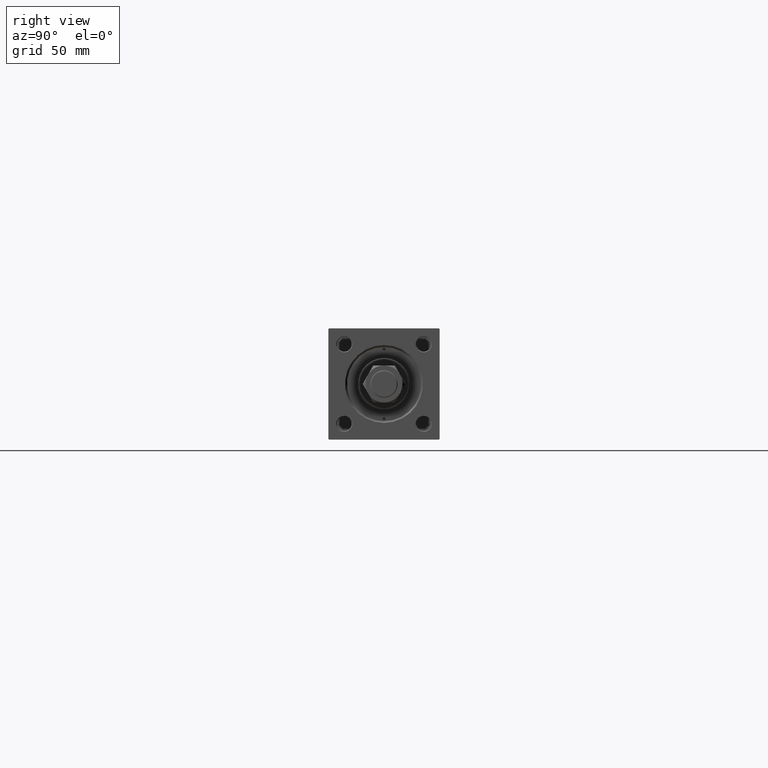
[diagram: clean part render]
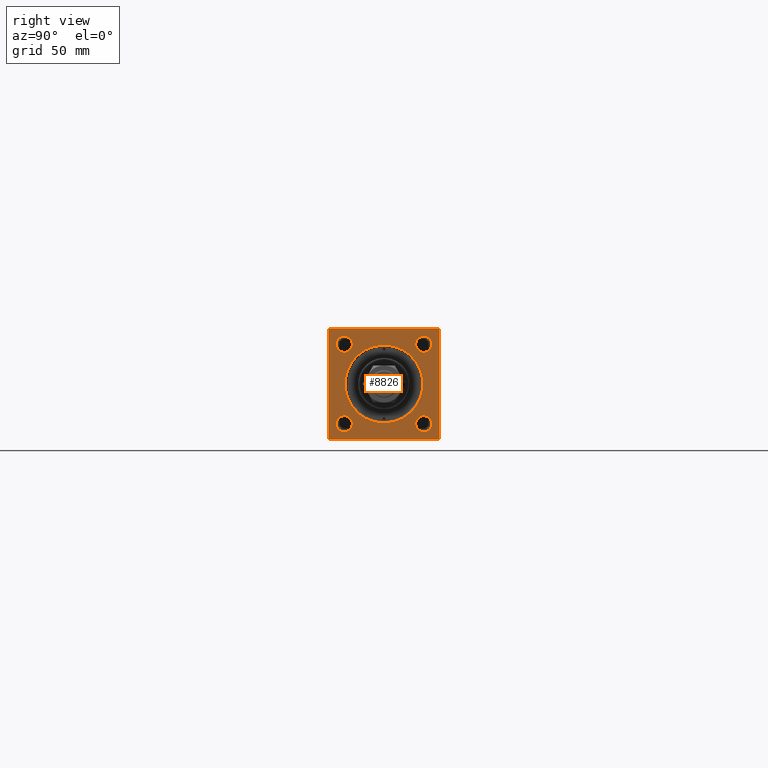
[diagram: same view with one face highlighted and labeled with its STEP entity id]
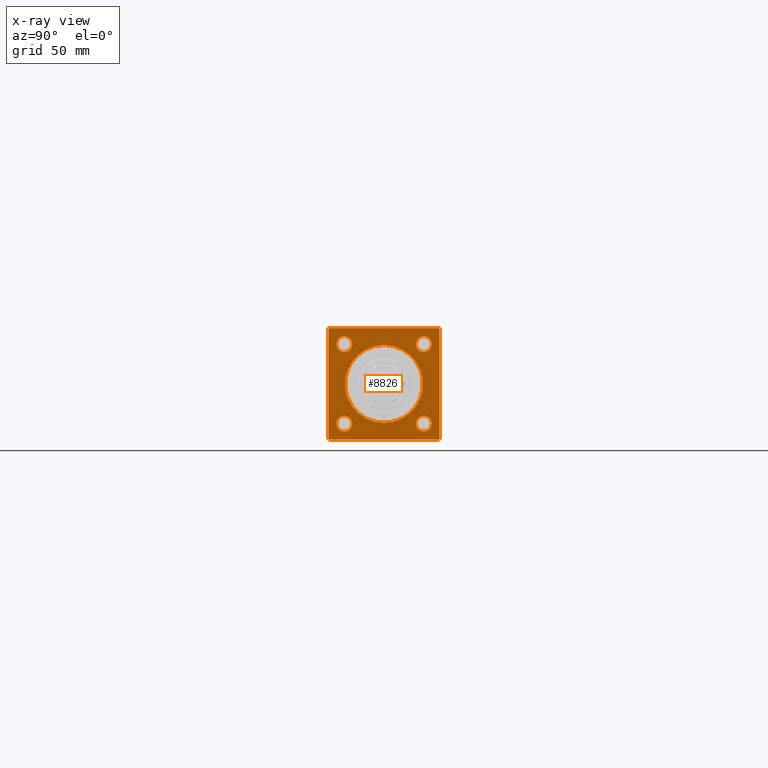
[diagram: x-ray of the same camera — body ghosted, the highlighted face saturated]
A machine part, right view. The second image highlights one B-rep face of the part: STEP entity #8826.
The next image is the same camera in x-ray: the body ghosted, the highlighted face saturated — about 0% of this face is hidden behind the body in this view.
In plain terms, the highlighted planar face has unit normal (-1, 0, 0).
Its self-contained STEP definition (entity closure, byte-faithful):
#196 = CARTESIAN_POINT ( 'NONE',  ( 485.0000000000000000, 32.14999999999999147, -32.15000000000000568 ) ) ;
#518 = EDGE_LOOP ( 'NONE', ( #8253, #6104 ) ) ;
#940 = ORIENTED_EDGE ( 'NONE', *, *, #2223, .T. ) ;
#1063 = VECTOR ( 'NONE', #6976, 1000.000000000000000 ) ;
#1171 = VERTEX_POINT ( 'NONE', #2897 ) ;
#1298 = VECTOR ( 'NONE', #34038, 1000.000000000000000 ) ;
#1666 = CIRCLE ( 'NONE', #3349, 6.500000000000117240 ) ;
#1839 = AXIS2_PLACEMENT_3D ( 'NONE', #37084, #29444, #29696 ) ;
#2223 = EDGE_CURVE ( 'NONE', #42530, #47388, #24286, .T. ) ;
#2332 = CARTESIAN_POINT ( 'NONE',  ( 485.0000000000000000, -32.15000000000001279, -32.15000000000000568 ) ) ;
#2397 = LINE ( 'NONE', #26338, #44651 ) ;
#2772 = CARTESIAN_POINT ( 'NONE',  ( 485.0000000000000000, 32.14999999999999147, 25.64999999999989555 ) ) ;
#2820 = DIRECTION ( 'NONE',  ( -1.000000000000000000, -0.000000000000000000, -0.000000000000000000 ) ) ;
#2897 = CARTESIAN_POINT ( 'NONE',  ( 485.0000000000000000, 45.00000000000001421, -44.49999999999991473 ) ) ;
#3349 = AXIS2_PLACEMENT_3D ( 'NONE', #31777, #2820, #3354 ) ;
#3354 = DIRECTION ( 'NONE',  ( 0.000000000000000000, 0.000000000000000000, 1.000000000000000000 ) ) ;
#3587 = FACE_OUTER_BOUND ( 'NONE', #6552, .T. ) ;
#3851 = DIRECTION ( 'NONE',  ( -0.000000000000000000, 0.000000000000000000, 1.000000000000000000 ) ) ;
#4114 = CARTESIAN_POINT ( 'NONE',  ( 485.0000000000000000, 44.49999999999990052, 45.00000000000000000 ) ) ;
#4147 = LINE ( 'NONE', #5180, #22558 ) ;
#4494 = ORIENTED_EDGE ( 'NONE', *, *, #11416, .F. ) ;
#4656 = AXIS2_PLACEMENT_3D ( 'NONE', #2332, #21100, #18871 ) ;
#4769 = EDGE_CURVE ( 'NONE', #27151, #29577, #45240, .T. ) ;
#5180 = CARTESIAN_POINT ( 'NONE',  ( 485.0000000000000000, 45.00000000000001421, 45.00000000000000000 ) ) ;
#5250 = EDGE_LOOP ( 'NONE', ( #23499, #22723 ) ) ;
#5683 = AXIS2_PLACEMENT_3D ( 'NONE', #29193, #9457, #17584 ) ;
#6104 = ORIENTED_EDGE ( 'NONE', *, *, #34909, .T. ) ;
#6409 = VERTEX_POINT ( 'NONE', #8727 ) ;
#6552 = EDGE_LOOP ( 'NONE', ( #8687, #31403, #21126, #7123, #4494, #9353, #12187, #33032 ) ) ;
#6758 = CARTESIAN_POINT ( 'NONE',  ( 485.0000000000000000, 32.14999999999999147, 32.15000000000000568 ) ) ;
#6976 = DIRECTION ( 'NONE',  ( -0.000000000000000000, 0.7071067811865081598, 0.7071067811865867636 ) ) ;
#7010 = ORIENTED_EDGE ( 'NONE', *, *, #37878, .T. ) ;
#7123 = ORIENTED_EDGE ( 'NONE', *, *, #14666, .T. ) ;
#7519 = DIRECTION ( 'NONE',  ( 0.000000000000000000, -1.000000000000000000, 0.000000000000000000 ) ) ;
#7580 = EDGE_CURVE ( 'NONE', #20411, #24297, #1666, .T. ) ;
#7612 = CIRCLE ( 'NONE', #8441, 31.49999999999997158 ) ;
#7869 = VECTOR ( 'NONE', #10122, 1000.000000000000000 ) ;
#8067 = CARTESIAN_POINT ( 'NONE',  ( 485.0000000000000000, -45.00000000000000000, 44.99999999999998579 ) ) ;
#8253 = ORIENTED_EDGE ( 'NONE', *, *, #8726, .T. ) ;
#8441 = AXIS2_PLACEMENT_3D ( 'NONE', #15776, #51863, #47639 ) ;
#8479 = EDGE_CURVE ( 'NONE', #47388, #42530, #7612, .T. ) ;
#8687 = ORIENTED_EDGE ( 'NONE', *, *, #12087, .T. ) ;
#8726 = EDGE_CURVE ( 'NONE', #47346, #25518, #21846, .T. ) ;
#8727 = CARTESIAN_POINT ( 'NONE',  ( 485.0000000000000000, 44.50000000000001421, -45.00000000000000000 ) ) ;
#8826 = ADVANCED_FACE ( 'NONE', ( #28834, #12508, #15934, #28580, #16704, #3587 ), #47792, .F. ) ;
#9353 = ORIENTED_EDGE ( 'NONE', *, *, #50203, .T. ) ;
#9457 = DIRECTION ( 'NONE',  ( -1.000000000000000000, -0.000000000000000000, -0.000000000000000000 ) ) ;
#9569 = LINE ( 'NONE', #10082, #1298 ) ;
#9610 = CARTESIAN_POINT ( 'NONE',  ( 485.0000000000000000, -44.49999999999990052, -45.00000000000000000 ) ) ;
#10082 = CARTESIAN_POINT ( 'NONE',  ( 485.0000000000000000, -45.00000000000000000, 44.49999999999992895 ) ) ;
#10122 = DIRECTION ( 'NONE',  ( 0.000000000000000000, 0.7071067811865916486, -0.7071067811865033859 ) ) ;
#10356 = VERTEX_POINT ( 'NONE', #18434 ) ;
#10950 = DIRECTION ( 'NONE',  ( -1.000000000000000000, -0.000000000000000000, -0.000000000000000000 ) ) ;
#10962 = CIRCLE ( 'NONE', #24420, 6.500000000000110134 ) ;
#11416 = EDGE_CURVE ( 'NONE', #25504, #1171, #2397, .T. ) ;
#11705 = CARTESIAN_POINT ( 'NONE',  ( 485.0000000000000000, 45.00000000000001421, -45.00000000000000000 ) ) ;
#11729 = DIRECTION ( 'NONE',  ( -1.000000000000000000, 0.000000000000000000, -0.000000000000000000 ) ) ;
#12087 = EDGE_CURVE ( 'NONE', #32514, #15677, #51757, .T. ) ;
#12187 = ORIENTED_EDGE ( 'NONE', *, *, #26376, .T. ) ;
#12508 = FACE_BOUND ( 'NONE', #20449, .T. ) ;
#12761 = CARTESIAN_POINT ( 'NONE',  ( 485.0000000000000000, 0.000000000000000000, 0.000000000000000000 ) ) ;
#13717 = CARTESIAN_POINT ( 'NONE',  ( 485.0000000000000000, -32.14999999999999147, 32.14999999999999147 ) ) ;
#13904 = CARTESIAN_POINT ( 'NONE',  ( 485.0000000000000000, 32.14999999999999147, 38.65000000000011227 ) ) ;
#14229 = DIRECTION ( 'NONE',  ( -1.000000000000000000, -0.000000000000000000, -0.000000000000000000 ) ) ;
#14281 = AXIS2_PLACEMENT_3D ( 'NONE', #12761, #11729, #3851 ) ;
#14594 = VERTEX_POINT ( 'NONE', #9610 ) ;
#14666 = EDGE_CURVE ( 'NONE', #6409, #1171, #31973, .T. ) ;
#15677 = VERTEX_POINT ( 'NONE', #31980 ) ;
#15776 = CARTESIAN_POINT ( 'NONE',  ( 485.0000000000000000, 0.000000000000000000, 0.000000000000000000 ) ) ;
#15934 = FACE_BOUND ( 'NONE', #32121, .T. ) ;
#16022 = CARTESIAN_POINT ( 'NONE',  ( 485.0000000000000000, 32.14999999999999147, -38.65000000000012648 ) ) ;
#16704 = FACE_BOUND ( 'NONE', #35495, .T. ) ;
#16982 = CARTESIAN_POINT ( 'NONE',  ( 485.0000000000000000, -32.15000000000001279, -25.64999999999988844 ) ) ;
#17406 = VERTEX_POINT ( 'NONE', #16022 ) ;
#17584 = DIRECTION ( 'NONE',  ( 0.000000000000000000, 0.000000000000000000, 1.000000000000000000 ) ) ;
#17861 = CARTESIAN_POINT ( 'NONE',  ( 485.0000000000000000, 45.00000000000001421, 44.49999999999994316 ) ) ;
#18066 = CARTESIAN_POINT ( 'NONE',  ( 485.0000000000000000, 32.14999999999999147, -32.15000000000000568 ) ) ;
#18324 = DIRECTION ( 'NONE',  ( 0.000000000000000000, 0.000000000000000000, 1.000000000000000000 ) ) ;
#18434 = CARTESIAN_POINT ( 'NONE',  ( 485.0000000000000000, 32.14999999999999147, -25.64999999999988844 ) ) ;
#18490 = ORIENTED_EDGE ( 'NONE', *, *, #44611, .T. ) ;
#18871 = DIRECTION ( 'NONE',  ( 0.000000000000000000, 0.000000000000000000, 1.000000000000000000 ) ) ;
#19326 = CARTESIAN_POINT ( 'NONE',  ( 485.0000000000000000, 0.000000000000000000, -31.49999999999997158 ) ) ;
#20142 = CIRCLE ( 'NONE', #36988, 6.500000000000117240 ) ;
#20184 = DIRECTION ( 'NONE',  ( 0.000000000000000000, -1.000000000000000000, -1.541976423090495140E-16 ) ) ;
#20411 = VERTEX_POINT ( 'NONE', #16982 ) ;
#20449 = EDGE_LOOP ( 'NONE', ( #27380, #7010 ) ) ;
#20502 = CARTESIAN_POINT ( 'NONE',  ( 485.0000000000000000, -32.14999999999999147, 25.64999999999987423 ) ) ;
#21100 = DIRECTION ( 'NONE',  ( -1.000000000000000000, -0.000000000000000000, -0.000000000000000000 ) ) ;
#21126 = ORIENTED_EDGE ( 'NONE', *, *, #22433, .F. ) ;
#21846 = CIRCLE ( 'NONE', #31963, 6.500000000000110134 ) ;
#22133 = DIRECTION ( 'NONE',  ( 0.000000000000000000, 0.000000000000000000, 1.000000000000000000 ) ) ;
#22433 = EDGE_CURVE ( 'NONE', #6409, #14594, #31720, .T. ) ;
#22558 = VECTOR ( 'NONE', #20184, 1000.000000000000000 ) ;
#22723 = ORIENTED_EDGE ( 'NONE', *, *, #28959, .T. ) ;
#22999 = CARTESIAN_POINT ( 'NONE',  ( 485.0000000000000000, 45.00000000000001421, -44.49999999999994316 ) ) ;
#23395 = CARTESIAN_POINT ( 'NONE',  ( 485.0000000000000000, -44.49999999999997158, 44.99999999999998579 ) ) ;
#23499 = ORIENTED_EDGE ( 'NONE', *, *, #29203, .T. ) ;
#23837 = DIRECTION ( 'NONE',  ( 0.000000000000000000, 7.709882115452478166E-17, -1.000000000000000000 ) ) ;
#24286 = CIRCLE ( 'NONE', #5683, 31.49999999999997158 ) ;
#24297 = VERTEX_POINT ( 'NONE', #42939 ) ;
#24347 = VERTEX_POINT ( 'NONE', #24991 ) ;
#24420 = AXIS2_PLACEMENT_3D ( 'NONE', #29492, #45543, #33697 ) ;
#24991 = CARTESIAN_POINT ( 'NONE',  ( 485.0000000000000000, 44.49999999999990052, 45.00000000000000000 ) ) ;
#25504 = VERTEX_POINT ( 'NONE', #17861 ) ;
#25518 = VERTEX_POINT ( 'NONE', #13904 ) ;
#26338 = CARTESIAN_POINT ( 'NONE',  ( 485.0000000000000000, 45.00000000000001421, 45.00000000000000000 ) ) ;
#26376 = EDGE_CURVE ( 'NONE', #24347, #40818, #4147, .T. ) ;
#27151 = VERTEX_POINT ( 'NONE', #20502 ) ;
#27380 = ORIENTED_EDGE ( 'NONE', *, *, #4769, .T. ) ;
#27470 = VECTOR ( 'NONE', #7519, 1000.000000000000000 ) ;
#28580 = FACE_BOUND ( 'NONE', #5250, .T. ) ;
#28834 = FACE_BOUND ( 'NONE', #518, .T. ) ;
#28959 = EDGE_CURVE ( 'NONE', #10356, #17406, #20142, .T. ) ;
#29193 = CARTESIAN_POINT ( 'NONE',  ( 485.0000000000000000, 0.000000000000000000, 0.000000000000000000 ) ) ;
#29203 = EDGE_CURVE ( 'NONE', #17406, #10356, #35293, .T. ) ;
#29444 = DIRECTION ( 'NONE',  ( -1.000000000000000000, -0.000000000000000000, -0.000000000000000000 ) ) ;
#29492 = CARTESIAN_POINT ( 'NONE',  ( 485.0000000000000000, 32.14999999999999147, 32.15000000000000568 ) ) ;
#29577 = VERTEX_POINT ( 'NONE', #41677 ) ;
#29696 = DIRECTION ( 'NONE',  ( 0.000000000000000000, 0.000000000000000000, 1.000000000000000000 ) ) ;
#30944 = CARTESIAN_POINT ( 'NONE',  ( 485.0000000000000000, 3.857637417314158745E-15, 31.49999999999997158 ) ) ;
#31403 = ORIENTED_EDGE ( 'NONE', *, *, #40284, .T. ) ;
#31720 = LINE ( 'NONE', #11705, #27470 ) ;
#31731 = ORIENTED_EDGE ( 'NONE', *, *, #8479, .T. ) ;
#31777 = CARTESIAN_POINT ( 'NONE',  ( 485.0000000000000000, -32.15000000000001279, -32.15000000000000568 ) ) ;
#31963 = AXIS2_PLACEMENT_3D ( 'NONE', #6758, #10950, #34905 ) ;
#31973 = LINE ( 'NONE', #22999, #1063 ) ;
#31980 = CARTESIAN_POINT ( 'NONE',  ( 485.0000000000000000, -44.99999999999999289, -44.49999999999997158 ) ) ;
#32121 = EDGE_LOOP ( 'NONE', ( #18490, #37405 ) ) ;
#32298 = DIRECTION ( 'NONE',  ( 0.000000000000000000, 0.000000000000000000, 1.000000000000000000 ) ) ;
#32514 = VERTEX_POINT ( 'NONE', #45142 ) ;
#33032 = ORIENTED_EDGE ( 'NONE', *, *, #48454, .T. ) ;
#33697 = DIRECTION ( 'NONE',  ( 0.000000000000000000, 0.000000000000000000, 1.000000000000000000 ) ) ;
#34038 = DIRECTION ( 'NONE',  ( -0.000000000000000000, -0.7071067811865081598, -0.7071067811865867636 ) ) ;
#34905 = DIRECTION ( 'NONE',  ( 0.000000000000000000, 0.000000000000000000, 1.000000000000000000 ) ) ;
#34909 = EDGE_CURVE ( 'NONE', #25518, #47346, #10962, .T. ) ;
#35293 = CIRCLE ( 'NONE', #47912, 6.500000000000117240 ) ;
#35495 = EDGE_LOOP ( 'NONE', ( #940, #31731 ) ) ;
#36988 = AXIS2_PLACEMENT_3D ( 'NONE', #18066, #38355, #18324 ) ;
#37084 = CARTESIAN_POINT ( 'NONE',  ( 485.0000000000000000, -32.14999999999999147, 32.14999999999999147 ) ) ;
#37405 = ORIENTED_EDGE ( 'NONE', *, *, #7580, .T. ) ;
#37878 = EDGE_CURVE ( 'NONE', #29577, #27151, #43018, .T. ) ;
#38193 = DIRECTION ( 'NONE',  ( 0.000000000000000000, 0.000000000000000000, -1.000000000000000000 ) ) ;
#38355 = DIRECTION ( 'NONE',  ( -1.000000000000000000, -0.000000000000000000, -0.000000000000000000 ) ) ;
#40284 = EDGE_CURVE ( 'NONE', #15677, #14594, #41984, .T. ) ;
#40429 = LINE ( 'NONE', #4114, #42506 ) ;
#40818 = VERTEX_POINT ( 'NONE', #23395 ) ;
#41677 = CARTESIAN_POINT ( 'NONE',  ( 485.0000000000000000, -32.14999999999999147, 38.65000000000010516 ) ) ;
#41984 = LINE ( 'NONE', #50131, #7869 ) ;
#42506 = VECTOR ( 'NONE', #51752, 1000.000000000000000 ) ;
#42530 = VERTEX_POINT ( 'NONE', #19326 ) ;
#42939 = CARTESIAN_POINT ( 'NONE',  ( 485.0000000000000000, -32.15000000000001279, -38.65000000000012648 ) ) ;
#43018 = CIRCLE ( 'NONE', #1839, 6.500000000000117240 ) ;
#43309 = CIRCLE ( 'NONE', #4656, 6.500000000000117240 ) ;
#44429 = AXIS2_PLACEMENT_3D ( 'NONE', #13717, #14229, #22133 ) ;
#44611 = EDGE_CURVE ( 'NONE', #24297, #20411, #43309, .T. ) ;
#44651 = VECTOR ( 'NONE', #38193, 1000.000000000000000 ) ;
#45142 = CARTESIAN_POINT ( 'NONE',  ( 485.0000000000000000, -45.00000000000000000, 44.49999999999992895 ) ) ;
#45240 = CIRCLE ( 'NONE', #44429, 6.500000000000117240 ) ;
#45543 = DIRECTION ( 'NONE',  ( -1.000000000000000000, -0.000000000000000000, -0.000000000000000000 ) ) ;
#47346 = VERTEX_POINT ( 'NONE', #2772 ) ;
#47388 = VERTEX_POINT ( 'NONE', #30944 ) ;
#47639 = DIRECTION ( 'NONE',  ( 0.000000000000000000, 0.000000000000000000, 1.000000000000000000 ) ) ;
#47792 = PLANE ( 'NONE',  #14281 ) ;
#47912 = AXIS2_PLACEMENT_3D ( 'NONE', #196, #48339, #32298 ) ;
#48339 = DIRECTION ( 'NONE',  ( -1.000000000000000000, -0.000000000000000000, -0.000000000000000000 ) ) ;
#48454 = EDGE_CURVE ( 'NONE', #40818, #32514, #9569, .T. ) ;
#48880 = VECTOR ( 'NONE', #23837, 1000.000000000000000 ) ;
#50131 = CARTESIAN_POINT ( 'NONE',  ( 485.0000000000000000, -44.49999999999992895, -45.00000000000000000 ) ) ;
#50203 = EDGE_CURVE ( 'NONE', #25504, #24347, #40429, .T. ) ;
#51752 = DIRECTION ( 'NONE',  ( 0.000000000000000000, -0.7071067811865867636, 0.7071067811865081598 ) ) ;
#51757 = LINE ( 'NONE', #8067, #48880 ) ;
#51863 = DIRECTION ( 'NONE',  ( -1.000000000000000000, -0.000000000000000000, -0.000000000000000000 ) ) ;